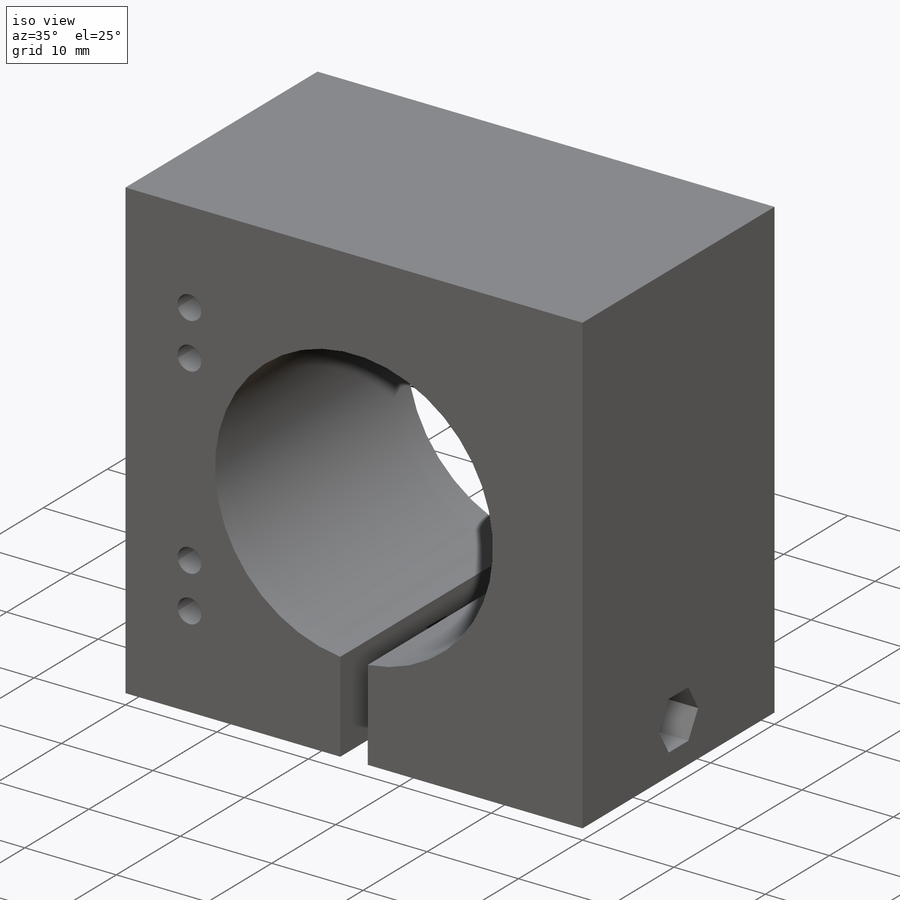
[diagram: iso view]
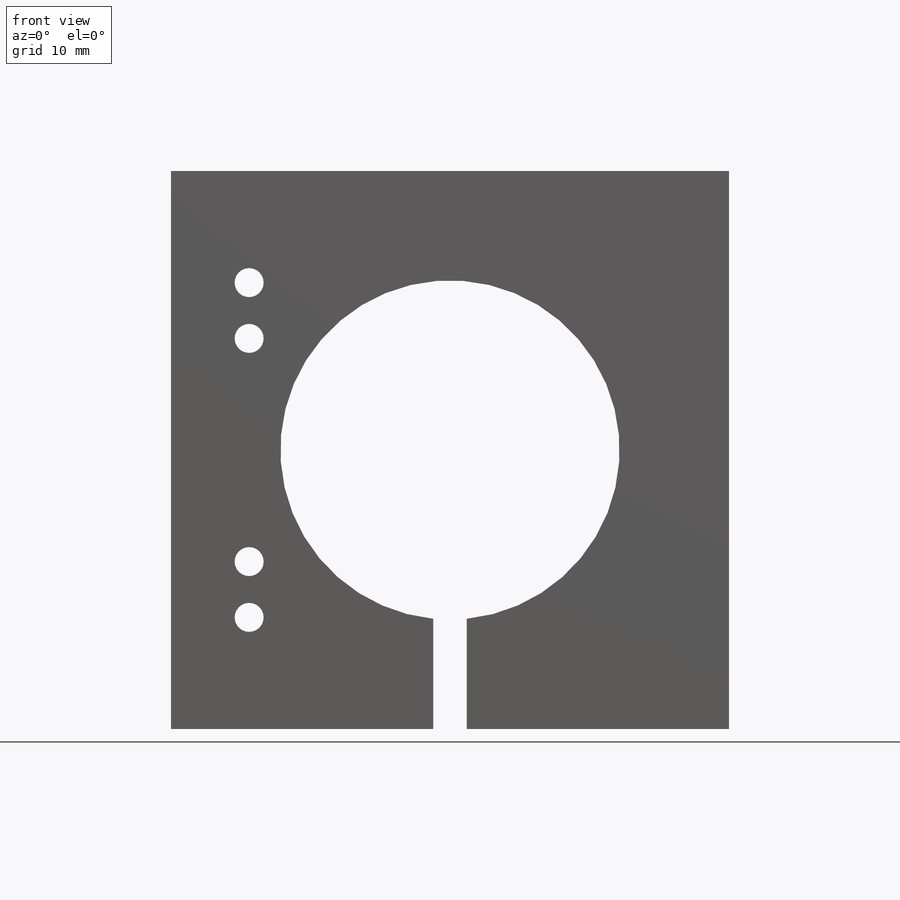
[diagram: front view]
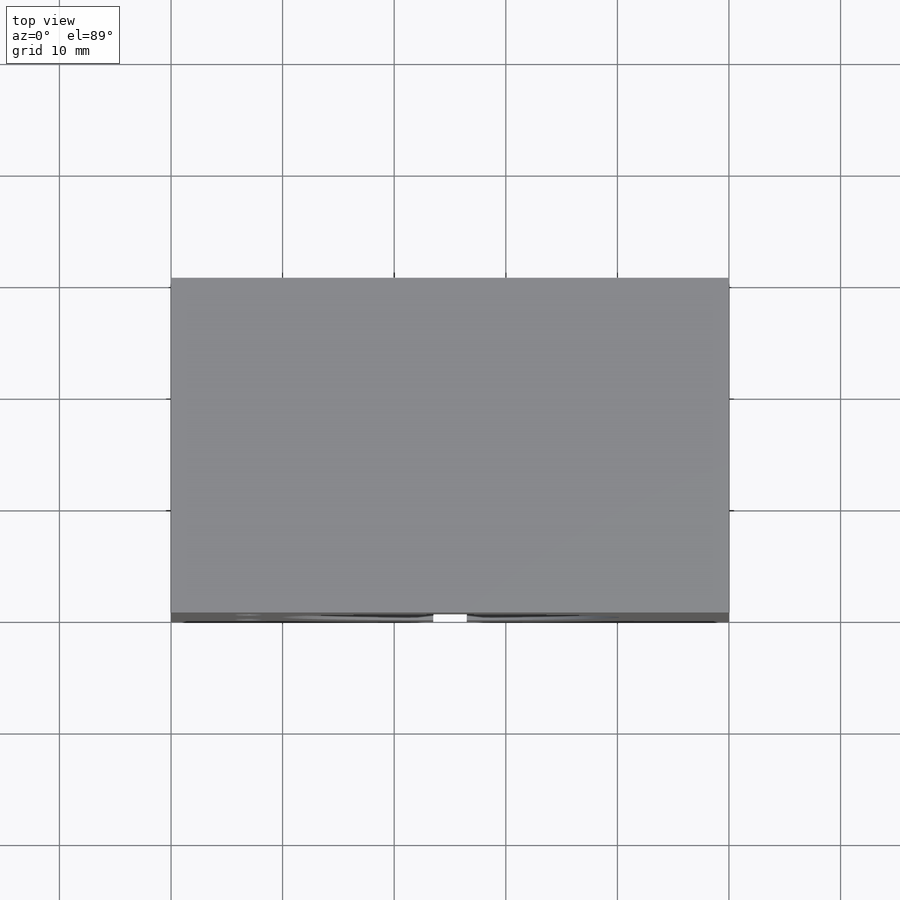
[diagram: top view]
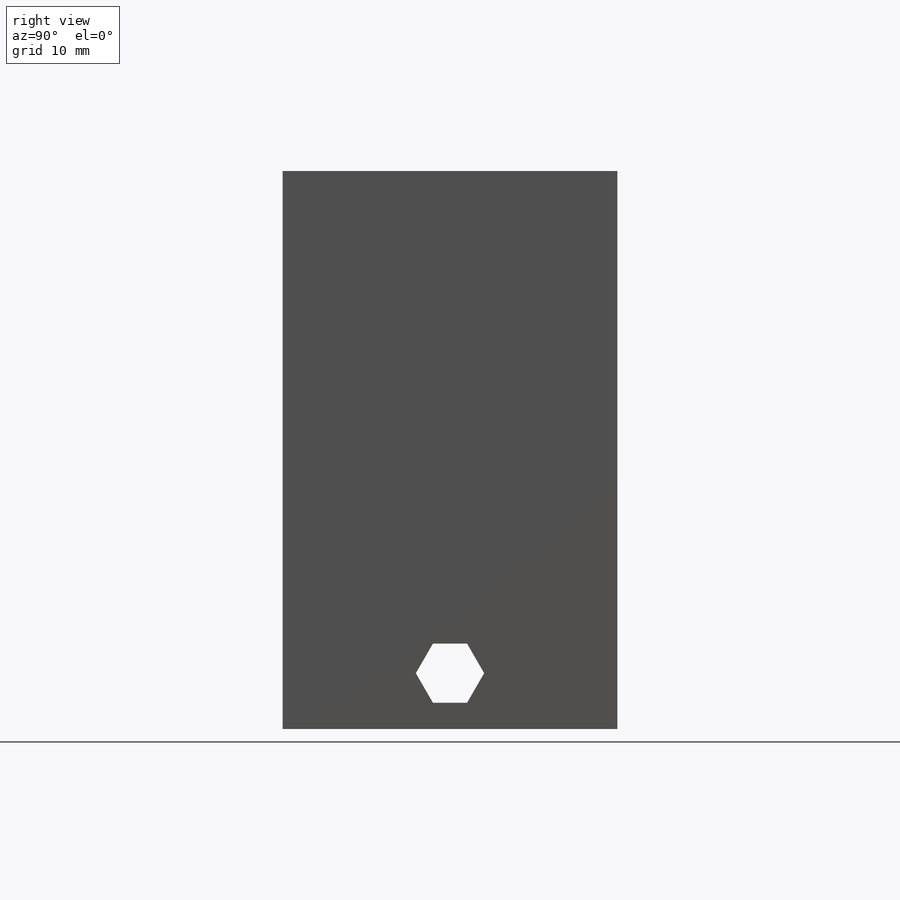
[diagram: right view]
SOLIDWORKS PART (.sldprt)
format: sldprt  version: not decoded by parser v0  size: 220,672 bytes
history: native  units: mm
features: sketch x4, cut_extrude x3, material x1, extrude x1 (+12 scaffold rows collapsed)
feature tree (21):
  scaffold x12  (default folders/planes/origin — collapsed)
  material  "Material <not specified>"
  sketch  "Sketch1"  dims[c1.D3=30.4mm c1.D6=3.0mm c1.D7=3.0mm c1.D14=3.0mm c1.D15=3.0mm c2.D7=2.6mm c2.D8=2.6mm c2.D1=50.0mm c2.D2=50.0mm c2.D4=25.0mm c2.D5=25.0mm c3.D8=18.0mm c3.D9=18.0mm c3.D10=10.0mm c3.D11=10.0mm c3.D12=10.0mm c3.D13=18.0mm c4.D11=10.0mm c4.D14=18.0mm c4.D6=5.0mm c4.D9=5.0mm]
  extrude  "Boss-Extrude1"  Depth=30mm
  sketch  "Sketch2"  dims[D1=3.0mm D2=23.5mm]
  cut_extrude  "Cut-Extrude1"  [1 undecoded]
  sketch  "Sketch3"  dims[c1.D1=5.0mm c1.D2=5.0mm c1.D3=15.0mm c1.D4=5.3mm c2.D1=15.0mm c2.D2=5.0mm]
  cut_extrude  "Cut-Extrude2"  Depth=54mm
  sketch  "Sketch4"  dims[D1=8.3mm]
  cut_extrude  "Cut-Extrude3"  Depth=5mm
decode coverage: 7 of 8 modeling features carry decoded parameters
note: 1 parameter value undecoded
note: suppression state not decoded; provenance and decode notes live in map.json
